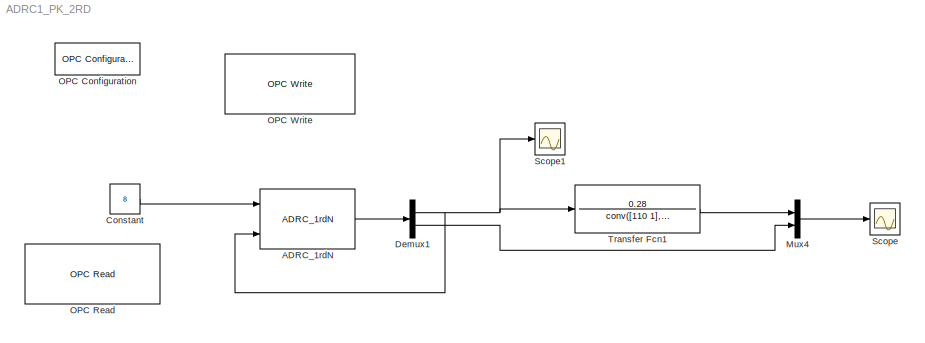
MODEL ADRC1_PK_2RD
KIND model
BLOCK [Reference] ADRC_1rdN  REF=ADRC/ADRC/ADRC_1rd/ADRC_1rdN
  B01 = 30
  B02 = 3000
  FunctionWithSeparateData = off
  GeneratePreprocessorConditionals = off
  Ports = [3, 1]
  RT = 300
  RTWMemSecDataConstants = Inherit from model
  RTWMemSecDataInternal = Inherit from model
  RTWMemSecDataParameters = Inherit from model
  RTWMemSecFuncExecute = Inherit from model
  RTWMemSecFuncInitTerm = Inherit from model
  SID = 1
  ShowPortLabels = FromPortIcon
  SourceBlock = ADRC/ADRC/ADRC_1rd/ADRC_1rdN
  SystemSampleTime = -1
  h = 0.05
  r = 0.01
BLOCK [Constant] Constant
  SID = 3
  Value = 8
BLOCK [Demux] Demux1
  DisplayOption = bar
  Outputs = 2
  Ports = [1, 2]
  SID = 5
BLOCK [Mux] Mux4
  DisplayOption = bar
  Inputs = 2
  Ports = [2, 1]
  SID = 14
BLOCK [Reference] OPC Configuration  REF=opclib/OPC Configuration
  Ports = []
  SID = 15
  SourceBlock = opclib/OPC Configuration
  SourceType = OPC Configuration
  beingUsed = on
  errMissingItems = Error
  errRTViolation = Warn
  errReadWrite = Warn
  errShutdown = Error
  rtEnable = on
  showLatency = off
  speedup = 1
BLOCK [Reference] OPC Read  REF=opclib/OPC Read
  Ports = [0, 3]
  SID = 16
  SourceBlock = opclib/OPC Read
  SourceType = OPC Read
  dataType = double
  readMode = Synchronous (cache)
  showQual = on
  showTS = on
  tsMode = Seconds since start
  updateRate = 0.5
BLOCK [Reference] OPC Write  REF=opclib/OPC Write
  Ports = [1]
  SID = 17
  SourceBlock = opclib/OPC Write
  SourceType = OPC Write
  updateRate = 0
  writeMode = Synchronous
BLOCK [Scope] Scope
  DataFormat = Array
  Floating = off
  LimitDataPoints = off
  NumInputPorts = 1
  Ports = [1]
  SID = 9
  SampleTime = 0
  TimeRange = 1000
  YMax = 12
  YMin = 0
BLOCK [Scope] Scope1
  DataFormat = Array
  Floating = off
  LimitDataPoints = off
  NumInputPorts = 1
  Ports = [1]
  SID = 13
  SampleTime = 0
  SaveName = ScopeData1
  TimeRange = 1000
  YMax = 1.4e+236
  YMin = -2e+235
BLOCK [TransferFcn] Transfer Fcn1
  Denominator = conv([110 1],[50 1])
  Numerator = 0.28
  SID = 11
LINE ADRC_1rdN:1 -> Demux1:1
LINE Constant:1 -> ADRC_1rdN:1
NET Demux1:1 -> ADRC_1rdN:3, Scope1:1, Transfer Fcn1:1
LINE Demux1:2 -> Mux4:2
LINE Mux4:1 -> Scope:1
LINE Transfer Fcn1:1 -> Mux4:1
note: NET lines group one-source signal fan-out (src -> all destinations, sorted); 1:1 wires keep LINE
